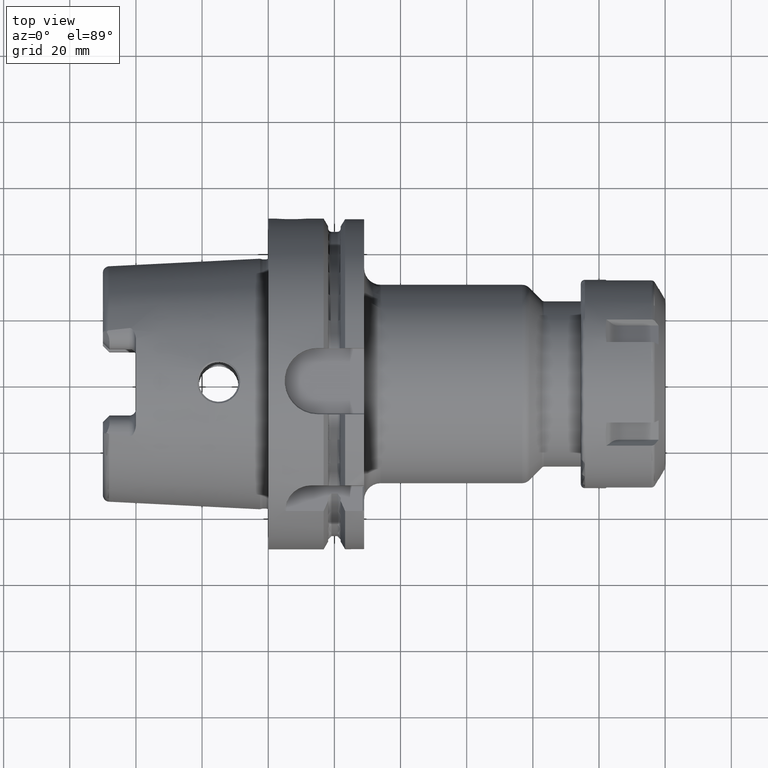
[diagram: clean part render]
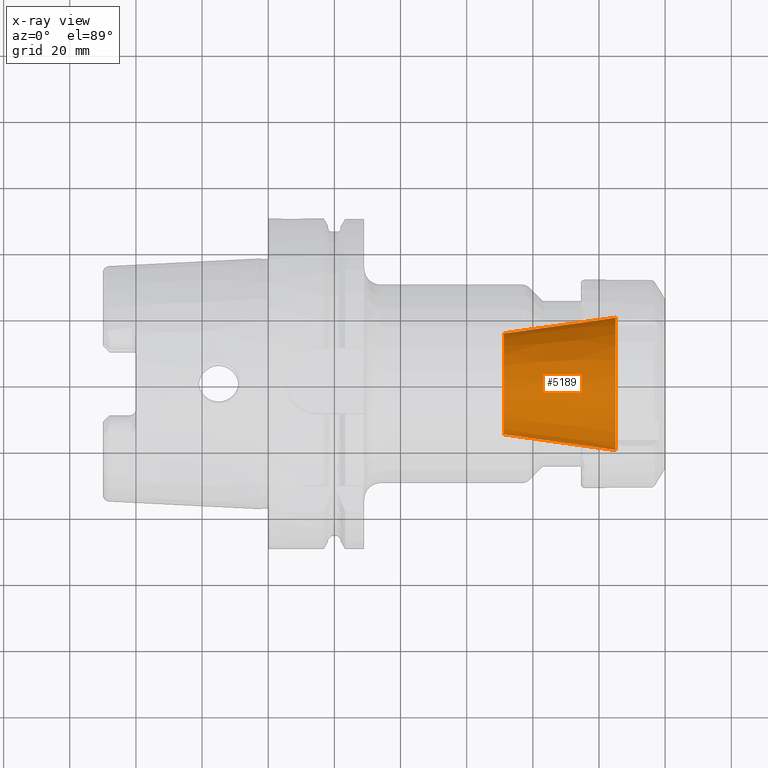
[diagram: x-ray — body ghosted, one internal face saturated and labeled with its STEP entity id]
A machine part, top view, then the same camera in x-ray: the body is ghosted and one INTERNAL B-rep face — a face not visible from any outside direction — is saturated and labeled: STEP entity #5189.
In plain terms, the highlighted conical surface has half-angle 8 deg.
Its self-contained STEP definition (entity closure, byte-faithful):
#1896=CARTESIAN_POINT('',(1.05E2,0.E0,0.E0));
#1897=DIRECTION('',(1.E0,0.E0,0.E0));
#1898=DIRECTION('',(0.E0,1.E0,0.E0));
#1899=AXIS2_PLACEMENT_3D('',#1896,#1897,#1898);
#1906=DIRECTION('',(-9.902680687416E-1,1.391731009601E-1,0.E0));
#1907=VECTOR('',#1906,3.413015853806E1);
#1908=CARTESIAN_POINT('',(1.05E2,-2.E1,0.E0));
#1909=LINE('',#1908,#1907);
#1910=DIRECTION('',(-9.902680687416E-1,-1.391731009601E-1,0.E0));
#1911=VECTOR('',#1910,3.413015853806E1);
#1912=CARTESIAN_POINT('',(1.05E2,2.E1,0.E0));
#1913=LINE('',#1912,#1911);
#1927=CARTESIAN_POINT('',(7.120199381867E1,0.E0,0.E0));
#1928=DIRECTION('',(1.E0,0.E0,0.E0));
#1929=DIRECTION('',(0.E0,1.E0,0.E0));
#1930=AXIS2_PLACEMENT_3D('',#1927,#1928,#1929);
#3188=CARTESIAN_POINT('',(7.120199381867E1,1.525E1,0.E0));
#3190=VERTEX_POINT('',#3188);
#3192=CARTESIAN_POINT('',(7.120199381867E1,-1.525E1,0.E0));
#3194=VERTEX_POINT('',#3192);
#3224=CARTESIAN_POINT('',(1.05E2,2.E1,0.E0));
#3225=CARTESIAN_POINT('',(1.05E2,-2.E1,0.E0));
#3226=VERTEX_POINT('',#3224);
#3227=VERTEX_POINT('',#3225);
#5175=CARTESIAN_POINT('',(8.810099690934E1,0.E0,0.E0));
#5176=DIRECTION('',(1.E0,0.E0,0.E0));
#5177=DIRECTION('',(0.E0,-1.E0,0.E0));
#5178=AXIS2_PLACEMENT_3D('',#5175,#5176,#5177);
#5179=CONICAL_SURFACE('',#5178,1.7625E1,8.E0);
#5180=ORIENTED_EDGE('',*,*,#5168,.F.);
#5182=ORIENTED_EDGE('',*,*,#5181,.T.);
#5184=ORIENTED_EDGE('',*,*,#5183,.T.);
#5186=ORIENTED_EDGE('',*,*,#5185,.F.);
#5187=EDGE_LOOP('',(#5180,#5182,#5184,#5186));
#5188=FACE_OUTER_BOUND('',#5187,.F.);
#5189=ADVANCED_FACE('',(#5188),#5179,.F.);
#1900=CIRCLE('',#1899,2.E1);
#1931=CIRCLE('',#1930,1.525E1);
#5168=EDGE_CURVE('',#3226,#3227,#1900,.T.);
#5181=EDGE_CURVE('',#3226,#3190,#1913,.T.);
#5183=EDGE_CURVE('',#3190,#3194,#1931,.T.);
#5185=EDGE_CURVE('',#3227,#3194,#1909,.T.);